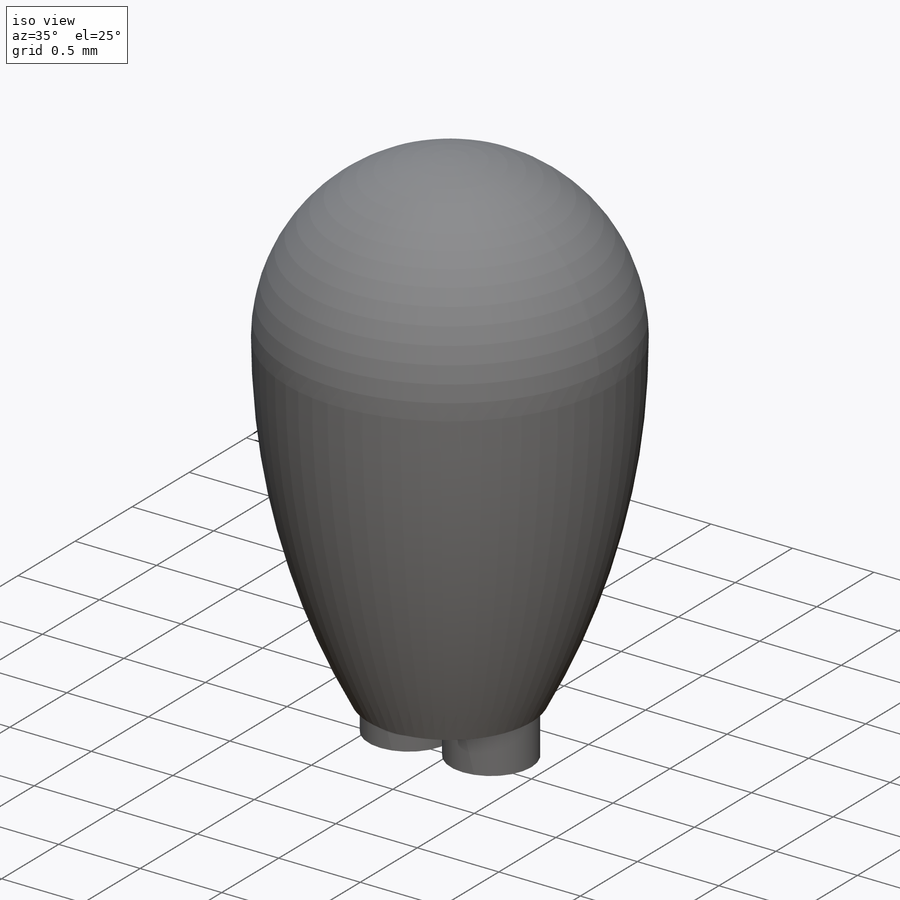
[diagram: iso view]
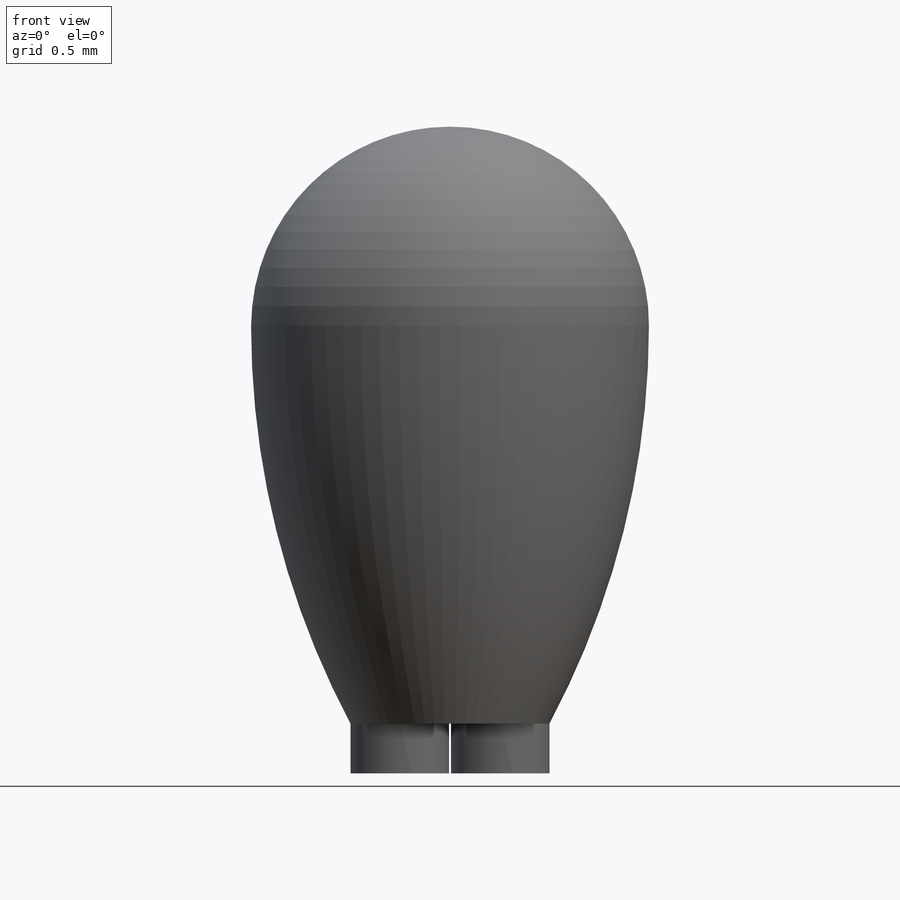
[diagram: front view]
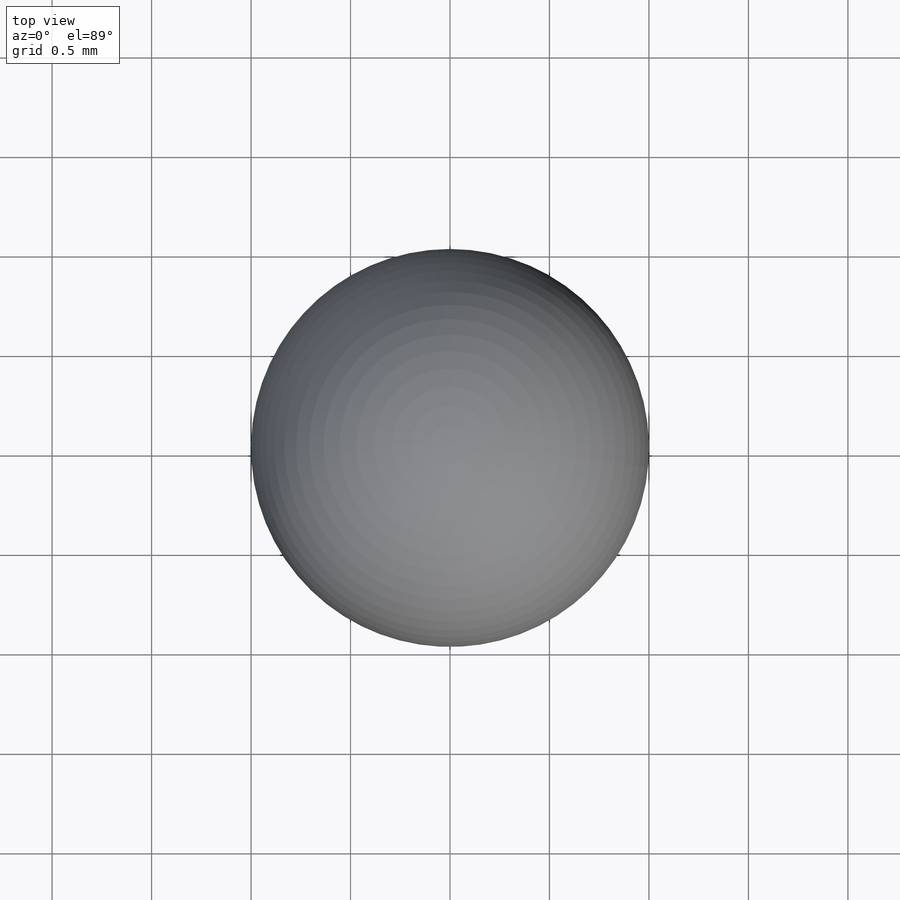
[diagram: top view]
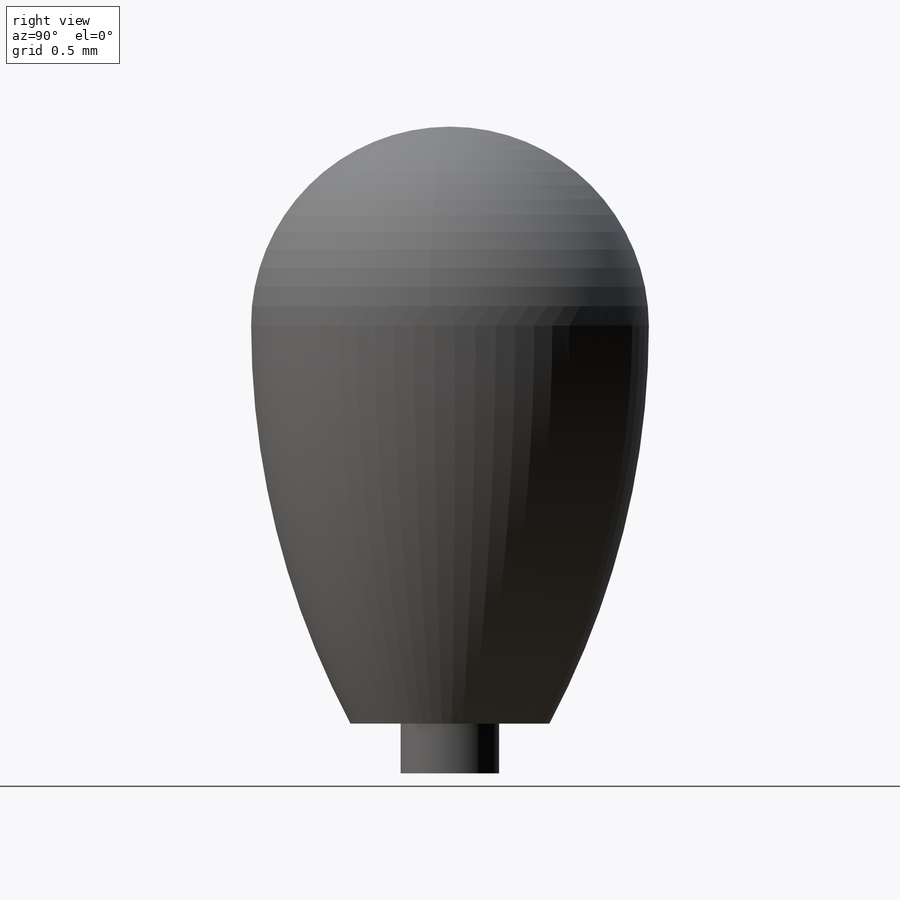
[diagram: right view]
SOLIDWORKS PART (.sldprt)
format: sldprt  version: not decoded by parser v0  size: 185,856 bytes
history: native  units: mm
features: sketch x2, revolve x2, extrude x2, material x1 (+12 scaffold rows collapsed)
feature tree (19):
  scaffold x12  (default folders/planes/origin — collapsed)
  material  "Material <not specified>"
  sketch  "Sketch1"  dims[c1.D1=~66.001227mm c1.D2=~76.197461mm c1.D3=~89.377248mm c1.D4=~63.866889mm c1.D5=63.5mm c1.D6=63.5mm c1.D7=63.5mm c1.D8=63.5mm c2.D2=1.0mm c2.D1=70.0deg c3.D2=70.0deg c3.D3=60.0deg c3.D4=60.0deg c3.D1=2.0mm c4.D3=0.5mm c4.D4=2.0mm]
  revolve  "Revolve2"  Angle=360deg
  sketch  "Sketch2"  dims[D1=0.495mm D2=~0.473405mm]
  extrude  "Boss-Extrude1"  Depth=0.25mm Diameter=1mm Width=0 StubLength=0mm
  revolve  "CPoint2"  [1 undecoded]
  extrude  "Axis2"  Depth=1mm Diameter=1mm Width=0 StubLength=0mm
decode coverage: 5 of 6 modeling features carry decoded parameters
note: ~ marks probable driven/reference dimensions
note: 1 parameter value undecoded
note: suppression state not decoded; provenance and decode notes live in map.json
